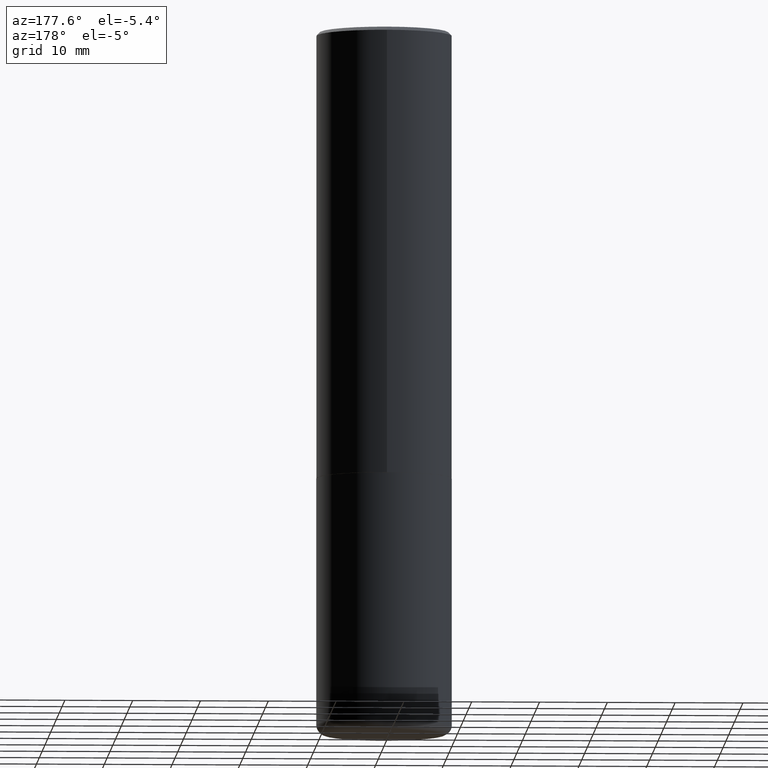
[diagram: clean part render]
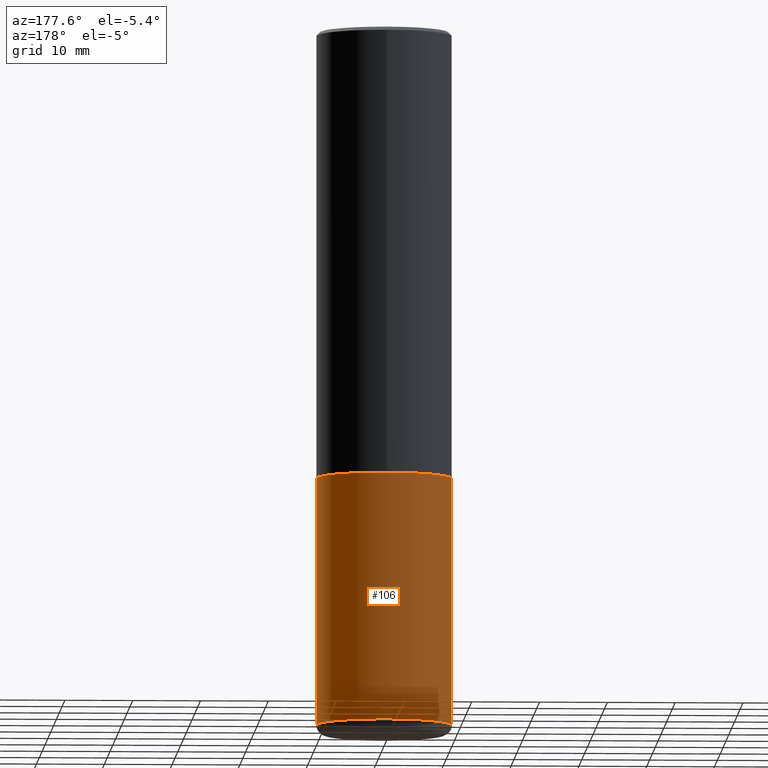
[diagram: same view with one face highlighted and labeled with its STEP entity id]
A machine part, auxiliary view. The second image highlights one B-rep face of the part: STEP entity #106.
In plain terms, the highlighted cylindrical surface (partial cylindrical patch) has radius 10 mm, axis along (-0, 0, 1).
Its self-contained STEP definition (entity closure, byte-faithful):
#17 = CARTESIAN_POINT ( 'NONE',  ( 0.3937000000000000499, -1.182145751705511584E-14, -2.598400000000000265 ) ) ;
#32 = CARTESIAN_POINT ( 'NONE',  ( 6.354306145991459756E-29, -9.072265110850031044E-15, -2.598400000000000265 ) ) ;
#38 = AXIS2_PLACEMENT_3D ( 'NONE', #241, #41, #144 ) ;
#41 = DIRECTION ( 'NONE',  ( -2.445468806185136597E-29, 3.491481338843145583E-15, 1.000000000000000000 ) ) ;
#50 = DIRECTION ( 'NONE',  ( -2.445468806185136597E-29, 3.491481338843145583E-15, 1.000000000000000000 ) ) ;
#64 = VERTEX_POINT ( 'NONE', #209 ) ;
#66 = DIRECTION ( 'NONE',  ( 1.000000000000000000, -6.982962677686267499E-15, 0.000000000000000000 ) ) ;
#100 = CARTESIAN_POINT ( 'NONE',  ( -0.3937000000000000499, -8.783487702121314705E-15, -2.598400000000000265 ) ) ;
#106 = ADVANCED_FACE ( 'NONE', ( #149 ), #275, .T. ) ;
#114 = CIRCLE ( 'NONE', #38, 0.3937000000000001054 ) ;
#115 = DIRECTION ( 'NONE',  ( 1.000000000000000000, -6.982962677686266711E-15, 4.876176775795935793E-29 ) ) ;
#119 = DIRECTION ( 'NONE',  ( -2.445468806185136597E-29, 3.491481338843145583E-15, 1.000000000000000000 ) ) ;
#125 = ORIENTED_EDGE ( 'NONE', *, *, #392, .F. ) ;
#144 = DIRECTION ( 'NONE',  ( 1.000000000000000000, -6.982962677686266711E-15, 0.000000000000000000 ) ) ;
#149 = FACE_OUTER_BOUND ( 'NONE', #372, .T. ) ;
#157 = CARTESIAN_POINT ( 'NONE',  ( 0.3937000000000001054, -2.749192406205084005E-15, 1.919750796630860452E-29 ) ) ;
#173 = VECTOR ( 'NONE', #284, 39.37007874015748143 ) ;
#190 = ORIENTED_EDGE ( 'NONE', *, *, #307, .T. ) ;
#207 = DIRECTION ( 'NONE',  ( -2.445468806185136877E-29, 3.491481338843145188E-15, 1.000000000000000000 ) ) ;
#209 = CARTESIAN_POINT ( 'NONE',  ( 0.3937000000000002164, -1.683871620097271431E-14, -4.035400000000000098 ) ) ;
#241 = CARTESIAN_POINT ( 'NONE',  ( 9.868444820479501934E-29, -1.408952379476762952E-14, -4.035400000000000098 ) ) ;
#268 = LINE ( 'NONE', #157, #173 ) ;
#274 = LINE ( 'NONE', #358, #305 ) ;
#275 = CYLINDRICAL_SURFACE ( 'NONE', #368, 0.3937000000000001054 ) ;
#284 = DIRECTION ( 'NONE',  ( -2.445468806185136877E-29, 3.491481338843145188E-15, 1.000000000000000000 ) ) ;
#285 = ORIENTED_EDGE ( 'NONE', *, *, #330, .F. ) ;
#288 = ORIENTED_EDGE ( 'NONE', *, *, #387, .T. ) ;
#304 = VERTEX_POINT ( 'NONE', #388 ) ;
#305 = VECTOR ( 'NONE', #207, 39.37007874015748143 ) ;
#307 = EDGE_CURVE ( 'NONE', #64, #304, #114, .T. ) ;
#325 = AXIS2_PLACEMENT_3D ( 'NONE', #32, #50, #66 ) ;
#330 = EDGE_CURVE ( 'NONE', #64, #405, #268, .T. ) ;
#343 = VERTEX_POINT ( 'NONE', #100 ) ;
#349 = CIRCLE ( 'NONE', #325, 0.3937000000000000499 ) ;
#358 = CARTESIAN_POINT ( 'NONE',  ( -0.3937000000000001054, 2.797406750687515181E-15, -1.936584745033357016E-29 ) ) ;
#368 = AXIS2_PLACEMENT_3D ( 'NONE', #398, #119, #115 ) ;
#372 = EDGE_LOOP ( 'NONE', ( #190, #288, #125, #285 ) ) ;
#387 = EDGE_CURVE ( 'NONE', #304, #343, #274, .T. ) ;
#388 = CARTESIAN_POINT ( 'NONE',  ( -0.3937000000000002164, -1.129211704408011394E-14, -4.035400000000000098 ) ) ;
#392 = EDGE_CURVE ( 'NONE', #405, #343, #349, .T. ) ;
#398 = CARTESIAN_POINT ( 'NONE',  ( 0.000000000000000000, 0.000000000000000000, 0.000000000000000000 ) ) ;
#405 = VERTEX_POINT ( 'NONE', #17 ) ;